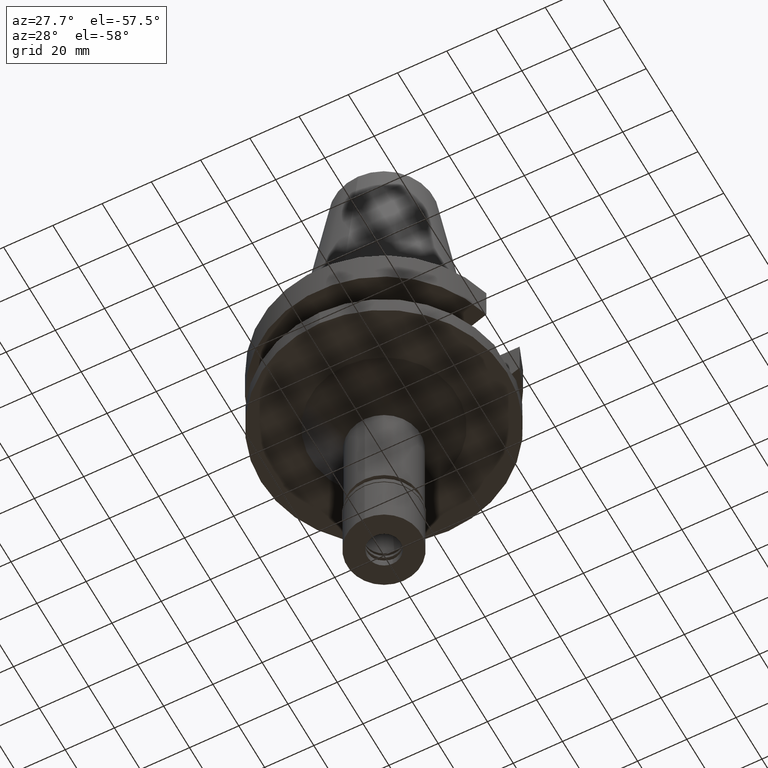
[diagram: clean part render]
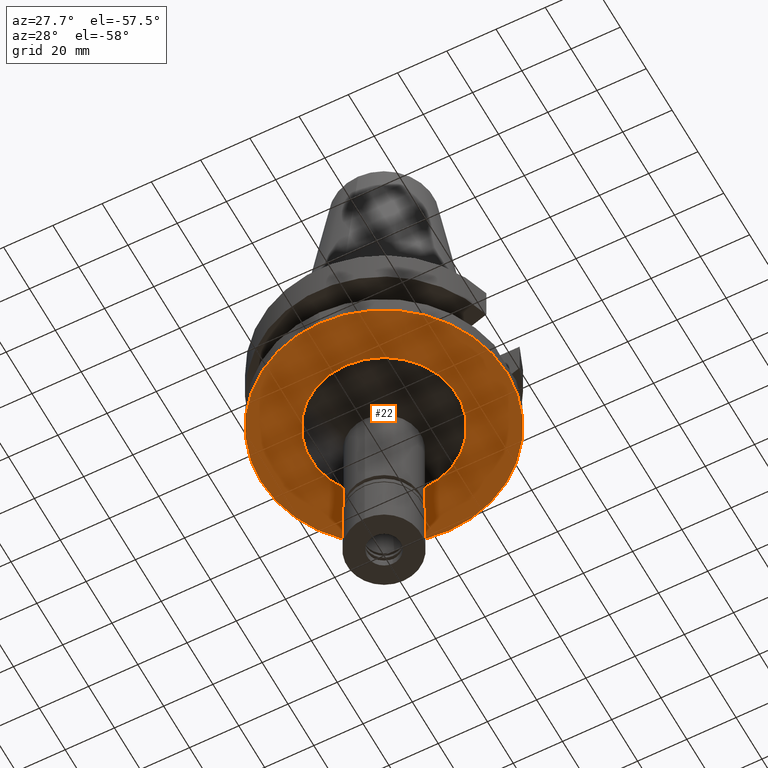
[diagram: same view with one face highlighted and labeled with its STEP entity id]
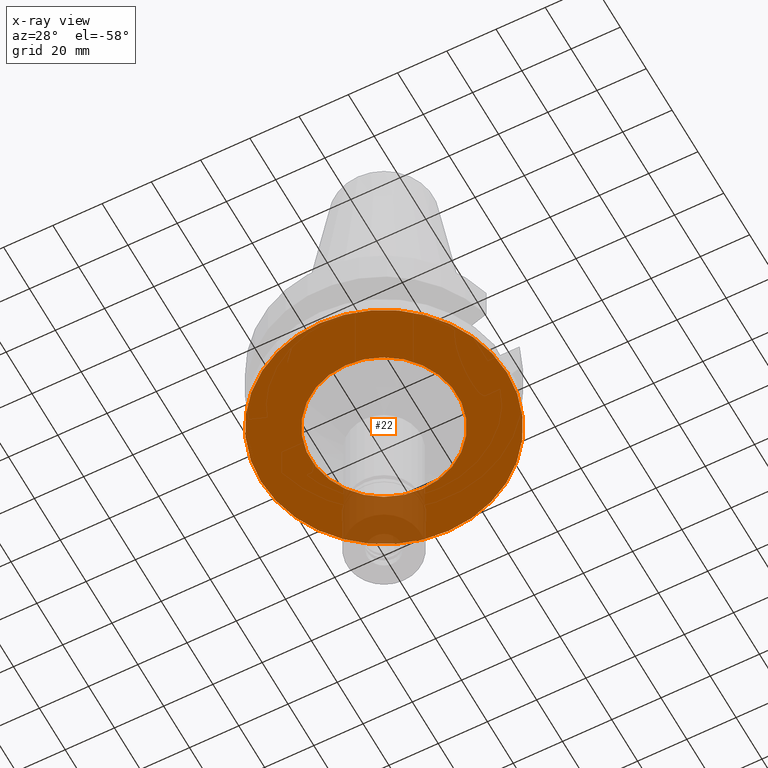
[diagram: x-ray of the same camera — body ghosted, the highlighted face saturated]
A machine part, auxiliary view. The second image highlights one B-rep face of the part: STEP entity #22.
The next image is the same camera in x-ray: the body ghosted, the highlighted face saturated — about 12% of this face is hidden behind the body in this view.
In plain terms, the highlighted planar face has unit normal (0, 0, -1).
Its self-contained STEP definition (entity closure, byte-faithful):
#22 = ADVANCED_FACE ( 'NONE', ( #1615, #1057 ), #827, .T. ) ;
#105 = ORIENTED_EDGE ( 'NONE', *, *, #377, .F. ) ;
#162 = ORIENTED_EDGE ( 'NONE', *, *, #1590, .F. ) ;
#207 = DIRECTION ( 'NONE',  ( 0.0000000000000000000, 0.0000000000000000000, -1.000000000000000000 ) ) ;
#353 = CARTESIAN_POINT ( 'NONE',  ( 0.0000000000000000000, 0.0000000000000000000, -38.00000000000000000 ) ) ;
#375 = AXIS2_PLACEMENT_3D ( 'NONE', #2566, #1797, #1373 ) ;
#377 = EDGE_CURVE ( 'NONE', #1583, #2416, #3010, .T. ) ;
#383 = AXIS2_PLACEMENT_3D ( 'NONE', #2397, #207, #2659 ) ;
#437 = CARTESIAN_POINT ( 'NONE',  ( 0.0000000000000000000, 2.601027336708999694E-14, -38.00000000000000000 ) ) ;
#555 = ORIENTED_EDGE ( 'NONE', *, *, #1025, .F. ) ;
#650 = AXIS2_PLACEMENT_3D ( 'NONE', #2114, #2368, #2352 ) ;
#789 = VERTEX_POINT ( 'NONE', #2911 ) ;
#827 = PLANE ( 'NONE',  #375 ) ;
#844 = AXIS2_PLACEMENT_3D ( 'NONE', #353, #2947, #2482 ) ;
#979 = VERTEX_POINT ( 'NONE', #983 ) ;
#983 = CARTESIAN_POINT ( 'NONE',  ( 0.0000000000000000000, -50.00000000000000000, -38.00000000000000000 ) ) ;
#1025 = EDGE_CURVE ( 'NONE', #2416, #1583, #1771, .T. ) ;
#1057 = FACE_BOUND ( 'NONE', #2008, .T. ) ;
#1373 = DIRECTION ( 'NONE',  ( 0.0000000000000000000, -1.000000000000000000, 0.0000000000000000000 ) ) ;
#1583 = VERTEX_POINT ( 'NONE', #2895 ) ;
#1590 = EDGE_CURVE ( 'NONE', #979, #789, #2274, .T. ) ;
#1615 = FACE_OUTER_BOUND ( 'NONE', #2761, .T. ) ;
#1771 = CIRCLE ( 'NONE', #383, 29.75000000000000000 ) ;
#1797 = DIRECTION ( 'NONE',  ( 0.0000000000000000000, 0.0000000000000000000, -1.000000000000000000 ) ) ;
#2008 = EDGE_LOOP ( 'NONE', ( #105, #555 ) ) ;
#2114 = CARTESIAN_POINT ( 'NONE',  ( 0.0000000000000000000, 2.601027336708999694E-14, -38.00000000000000000 ) ) ;
#2234 = EDGE_CURVE ( 'NONE', #789, #979, #2326, .T. ) ;
#2274 = CIRCLE ( 'NONE', #2372, 50.00000000000000000 ) ;
#2326 = CIRCLE ( 'NONE', #650, 50.00000000000000000 ) ;
#2352 = DIRECTION ( 'NONE',  ( 0.0000000000000000000, 1.000000000000000000, 0.0000000000000000000 ) ) ;
#2368 = DIRECTION ( 'NONE',  ( 0.0000000000000000000, 0.0000000000000000000, 1.000000000000000000 ) ) ;
#2372 = AXIS2_PLACEMENT_3D ( 'NONE', #437, #2595, #2859 ) ;
#2397 = CARTESIAN_POINT ( 'NONE',  ( 0.0000000000000000000, 0.0000000000000000000, -38.00000000000000000 ) ) ;
#2416 = VERTEX_POINT ( 'NONE', #3133 ) ;
#2482 = DIRECTION ( 'NONE',  ( 0.0000000000000000000, 1.000000000000000000, 0.0000000000000000000 ) ) ;
#2566 = CARTESIAN_POINT ( 'NONE',  ( 0.0000000000000000000, 0.0000000000000000000, -38.00000000000000000 ) ) ;
#2595 = DIRECTION ( 'NONE',  ( 0.0000000000000000000, 0.0000000000000000000, 1.000000000000000000 ) ) ;
#2659 = DIRECTION ( 'NONE',  ( 0.0000000000000000000, -1.000000000000000000, 0.0000000000000000000 ) ) ;
#2761 = EDGE_LOOP ( 'NONE', ( #2835, #162 ) ) ;
#2835 = ORIENTED_EDGE ( 'NONE', *, *, #2234, .F. ) ;
#2859 = DIRECTION ( 'NONE',  ( 0.0000000000000000000, -1.000000000000000000, 0.0000000000000000000 ) ) ;
#2895 = CARTESIAN_POINT ( 'NONE',  ( 0.0000000000000000000, 29.75000000000000000, -38.00000000000000000 ) ) ;
#2911 = CARTESIAN_POINT ( 'NONE',  ( 0.0000000000000000000, 50.00000000000000000, -38.00000000000000000 ) ) ;
#2947 = DIRECTION ( 'NONE',  ( 0.0000000000000000000, 0.0000000000000000000, -1.000000000000000000 ) ) ;
#3010 = CIRCLE ( 'NONE', #844, 29.75000000000000000 ) ;
#3133 = CARTESIAN_POINT ( 'NONE',  ( 0.0000000000000000000, -29.75000000000000000, -38.00000000000000000 ) ) ;